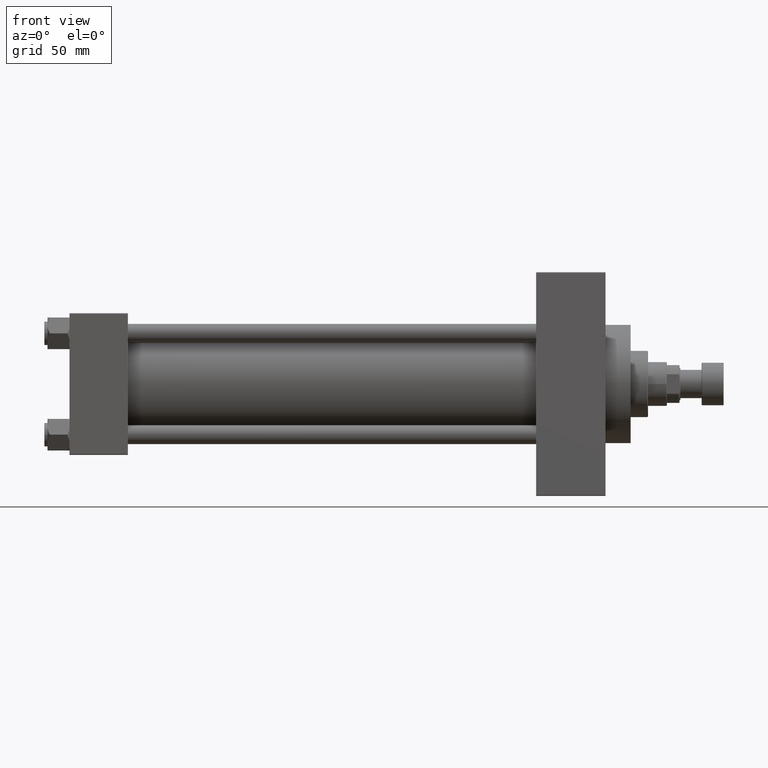
[diagram: clean part render]
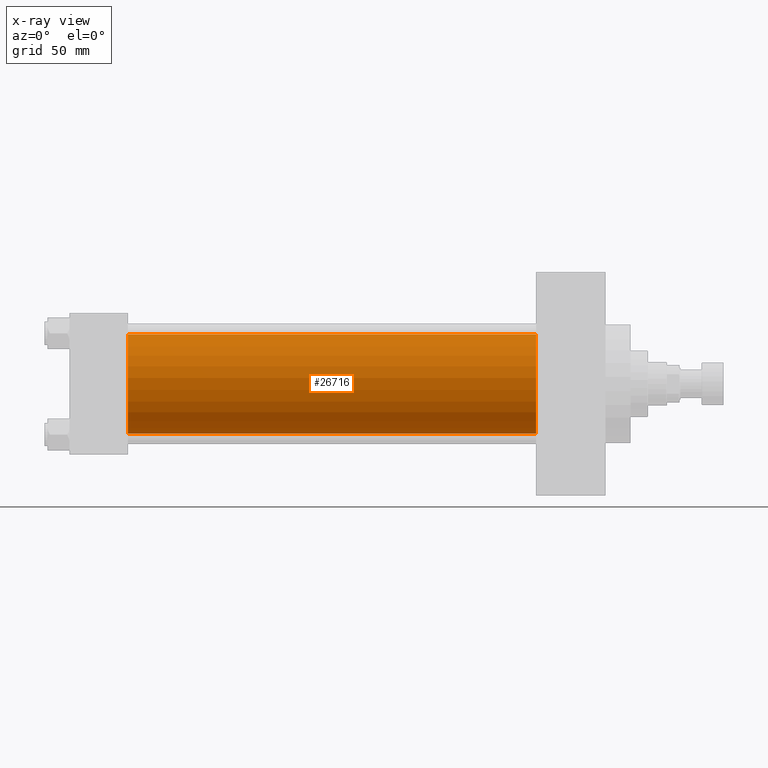
[diagram: x-ray — body ghosted, one internal face saturated and labeled with its STEP entity id]
A machine part, front view, then the same camera in x-ray: the body is ghosted and one INTERNAL B-rep face — a face not visible from any outside direction — is saturated and labeled: STEP entity #26716.
In plain terms, the highlighted cylindrical surface (partial cylindrical patch) has radius 31.5 mm, axis along (-1, -0, -0).
Its self-contained STEP definition (entity closure, byte-faithful):
#825 = ORIENTED_EDGE ( 'NONE', *, *, #30693, .T. ) ;
#1020 = VERTEX_POINT ( 'NONE', #1884 ) ;
#1179 = CIRCLE ( 'NONE', #34911, 31.50000000000000000 ) ;
#1884 = CARTESIAN_POINT ( 'NONE',  ( 296.0000000000000000, 1.255552203348951850E-15, -31.50000000000000000 ) ) ;
#3980 = DIRECTION ( 'NONE',  ( 1.000000000000000000, 0.000000000000000000, 0.000000000000000000 ) ) ;
#6115 = CARTESIAN_POINT ( 'NONE',  ( 296.0000000000000000, -2.602085213965210642E-15, 31.50000000000000000 ) ) ;
#6970 = DIRECTION ( 'NONE',  ( -1.000000000000000000, -0.000000000000000000, -0.000000000000000000 ) ) ;
#7406 = VERTEX_POINT ( 'NONE', #33066 ) ;
#8152 = EDGE_CURVE ( 'NONE', #7406, #15940, #1179, .T. ) ;
#8745 = EDGE_CURVE ( 'NONE', #10990, #7406, #9637, .T. ) ;
#9637 = LINE ( 'NONE', #6115, #35778 ) ;
#10592 = EDGE_LOOP ( 'NONE', ( #21299, #825, #16804, #29968 ) ) ;
#10990 = VERTEX_POINT ( 'NONE', #12524 ) ;
#12524 = CARTESIAN_POINT ( 'NONE',  ( 296.0000000000000000, -2.602085213965210642E-15, 31.50000000000000000 ) ) ;
#15916 = LINE ( 'NONE', #23697, #42701 ) ;
#15940 = VERTEX_POINT ( 'NONE', #35137 ) ;
#16804 = ORIENTED_EDGE ( 'NONE', *, *, #8152, .F. ) ;
#18296 = CARTESIAN_POINT ( 'NONE',  ( 296.0000000000000000, -2.602085213965210642E-15, 0.000000000000000000 ) ) ;
#19561 = DIRECTION ( 'NONE',  ( 0.000000000000000000, 0.000000000000000000, -1.000000000000000000 ) ) ;
#21299 = ORIENTED_EDGE ( 'NONE', *, *, #35647, .T. ) ;
#21983 = CIRCLE ( 'NONE', #38857, 31.50000000000000000 ) ;
#22334 = CARTESIAN_POINT ( 'NONE',  ( 37.00000000000000000, -2.602085213965210642E-15, 0.000000000000000000 ) ) ;
#22830 = DIRECTION ( 'NONE',  ( 1.000000000000000000, 0.000000000000000000, 0.000000000000000000 ) ) ;
#23697 = CARTESIAN_POINT ( 'NONE',  ( 296.0000000000000000, 1.255552203348951850E-15, -31.50000000000000000 ) ) ;
#26716 = ADVANCED_FACE ( 'NONE', ( #33620 ), #45192, .F. ) ;
#28742 = DIRECTION ( 'NONE',  ( -1.000000000000000000, -0.000000000000000000, -0.000000000000000000 ) ) ;
#29968 = ORIENTED_EDGE ( 'NONE', *, *, #8745, .F. ) ;
#30587 = AXIS2_PLACEMENT_3D ( 'NONE', #18296, #6970, #37650 ) ;
#30693 = EDGE_CURVE ( 'NONE', #1020, #15940, #15916, .T. ) ;
#33066 = CARTESIAN_POINT ( 'NONE',  ( 37.00000000000000000, -2.602085213965210642E-15, 31.50000000000000000 ) ) ;
#33620 = FACE_OUTER_BOUND ( 'NONE', #10592, .T. ) ;
#34494 = DIRECTION ( 'NONE',  ( -1.000000000000000000, -0.000000000000000000, -0.000000000000000000 ) ) ;
#34911 = AXIS2_PLACEMENT_3D ( 'NONE', #22334, #22830, #19561 ) ;
#35137 = CARTESIAN_POINT ( 'NONE',  ( 37.00000000000000000, 1.255552203348951850E-15, -31.50000000000000000 ) ) ;
#35647 = EDGE_CURVE ( 'NONE', #10990, #1020, #21983, .T. ) ;
#35778 = VECTOR ( 'NONE', #28742, 1000.000000000000000 ) ;
#37650 = DIRECTION ( 'NONE',  ( 0.000000000000000000, 0.000000000000000000, 1.000000000000000000 ) ) ;
#38857 = AXIS2_PLACEMENT_3D ( 'NONE', #38940, #3980, #49756 ) ;
#38940 = CARTESIAN_POINT ( 'NONE',  ( 296.0000000000000000, -2.602085213965210642E-15, 0.000000000000000000 ) ) ;
#42701 = VECTOR ( 'NONE', #34494, 1000.000000000000000 ) ;
#45192 = CYLINDRICAL_SURFACE ( 'NONE', #30587, 31.50000000000000000 ) ;
#49756 = DIRECTION ( 'NONE',  ( 0.000000000000000000, 0.000000000000000000, -1.000000000000000000 ) ) ;